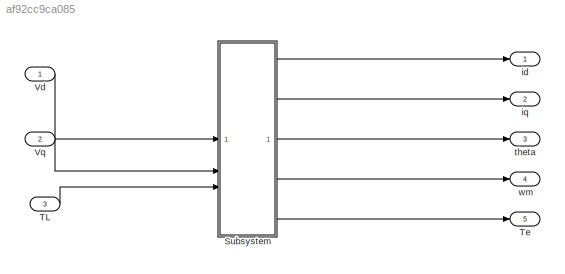
MODEL slx_af92cc9ca085
KIND model
CONFIG AbsTol = auto
CONFIG EnableMultiTasking = off
CONFIG FixedStep = auto
CONFIG MaxStep = auto
CONFIG MinStep = auto
CONFIG RelTol = 1e-3
CONFIG SampleTimeConstraint = Unconstrained
CONFIG SolverName = VariableStepAuto
CONFIG StartTime = 0.0
CONFIG StopTime = 10.0
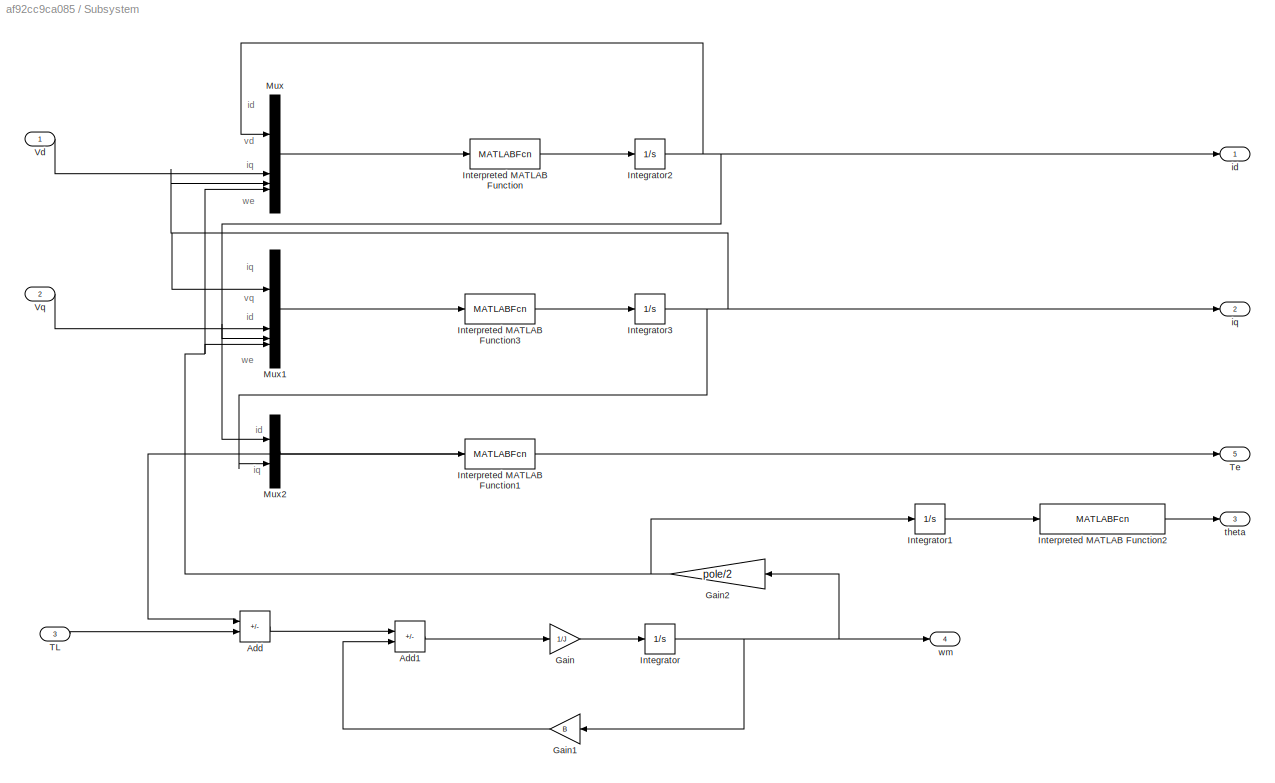
BLOCK [SubSystem] Subsystem
BLOCK [Sum] Subsystem/Add
  IconShape = rectangular
  Inputs = +-
BLOCK [Sum] Subsystem/Add1
  IconShape = rectangular
  Inputs = +-
BLOCK [Gain] Subsystem/Gain
  Gain = 1/J
BLOCK [Gain] Subsystem/Gain1
  Gain = B
  NameLocation = top
BLOCK [Gain] Subsystem/Gain2
  Gain = pole/2
  NameLocation = top
BLOCK [Integrator] Subsystem/Integrator
BLOCK [Integrator] Subsystem/Integrator1
BLOCK [Integrator] Subsystem/Integrator2
BLOCK [Integrator] Subsystem/Integrator3
BLOCK [MATLABFcn] Subsystem/Interpreted MATLAB Function
  MATLABFcn = -(Rs/Ld)u(1)+(1/Ld)u(2)+(Lq/Ld)*u(3)*u(4)
BLOCK [MATLABFcn] Subsystem/Interpreted MATLAB Function1
  MATLABFcn = (3/2)*(pole/2)*(Lambda_f*u(2)+(Ld-Lq)*u(1)*u(2))
BLOCK [MATLABFcn] Subsystem/Interpreted MATLAB Function2
  MATLABFcn = mod(u,2*pi)
BLOCK [MATLABFcn] Subsystem/Interpreted MATLAB Function3
  MATLABFcn = -(Rs/Lq)*u(1)+(1/Lq)u(2)-(Ld/Lq)*u(3)*u(4)-(Lambda_f/Lq)*u(4)
BLOCK [Mux] Subsystem/Mux
  DisplayOption = bar
BLOCK [Mux] Subsystem/Mux1
  DisplayOption = bar
BLOCK [Mux] Subsystem/Mux2
  DisplayOption = bar
  Inputs = 2
BLOCK [Inport] Subsystem/TL
  Port = 3
BLOCK [Outport] Subsystem/Te
  Port = 5
BLOCK [Inport] Subsystem/Vd
BLOCK [Inport] Subsystem/Vq
  Port = 2
BLOCK [Outport] Subsystem/id
BLOCK [Outport] Subsystem/iq
  Port = 2
BLOCK [Outport] Subsystem/theta
  Port = 3
BLOCK [Outport] Subsystem/wm
  Port = 4
BLOCK [Inport] TL
  Port = 3
BLOCK [Outport] Te
  Port = 5
BLOCK [Inport] Vd
BLOCK [Inport] Vq
  Port = 2
BLOCK [Outport] id
BLOCK [Outport] iq
  Port = 2
BLOCK [Outport] theta
  Port = 3
BLOCK [Outport] wm
  Port = 4
ANNOTATION Subsystem: id
ANNOTATION Subsystem: iq
ANNOTATION Subsystem: vd
ANNOTATION Subsystem: vq
ANNOTATION Subsystem: we
LINE Subsystem/Add1:1 -> Subsystem/Gain:1
LINE Subsystem/Add:1 -> Subsystem/Add1:1
LINE Subsystem/Gain1:1 -> Subsystem/Add1:2
NET Subsystem/Gain2:1 -> Subsystem/Integrator1:1, Subsystem/Mux1:4, Subsystem/Mux:4
LINE Subsystem/Gain:1 -> Subsystem/Integrator:1
LINE Subsystem/Integrator1:1 -> Subsystem/Interpreted MATLAB Function2:1
NET Subsystem/Integrator2:1 -> Subsystem/Mux1:3, Subsystem/Mux2:1, Subsystem/Mux:1, Subsystem/id:1
NET Subsystem/Integrator3:1 -> Subsystem/Mux1:1, Subsystem/Mux2:2, Subsystem/Mux:3, Subsystem/iq:1
NET Subsystem/Integrator:1 -> Subsystem/Gain1:1, Subsystem/Gain2:1, Subsystem/wm:1
NET Subsystem/Interpreted MATLAB Function1:1 -> Subsystem/Add:1, Subsystem/Te:1
LINE Subsystem/Interpreted MATLAB Function2:1 -> Subsystem/theta:1
LINE Subsystem/Interpreted MATLAB Function3:1 -> Subsystem/Integrator3:1
LINE Subsystem/Interpreted MATLAB Function:1 -> Subsystem/Integrator2:1
LINE Subsystem/Mux1:1 -> Subsystem/Interpreted MATLAB Function3:1
LINE Subsystem/Mux2:1 -> Subsystem/Interpreted MATLAB Function1:1
LINE Subsystem/Mux:1 -> Subsystem/Interpreted MATLAB Function:1
LINE Subsystem/TL:1 -> Subsystem/Add:2
LINE Subsystem/Vd:1 -> Subsystem/Mux:2
LINE Subsystem/Vq:1 -> Subsystem/Mux1:2
LINE Subsystem:1 -> id:1
LINE Subsystem:2 -> iq:1
LINE Subsystem:3 -> theta:1
LINE Subsystem:4 -> wm:1
LINE Subsystem:5 -> Te:1
LINE TL:1 -> Subsystem:3
LINE Vd:1 -> Subsystem:1
LINE Vq:1 -> Subsystem:2
note: NET lines group one-source signal fan-out (src -> all destinations, sorted); 1:1 wires keep LINE
